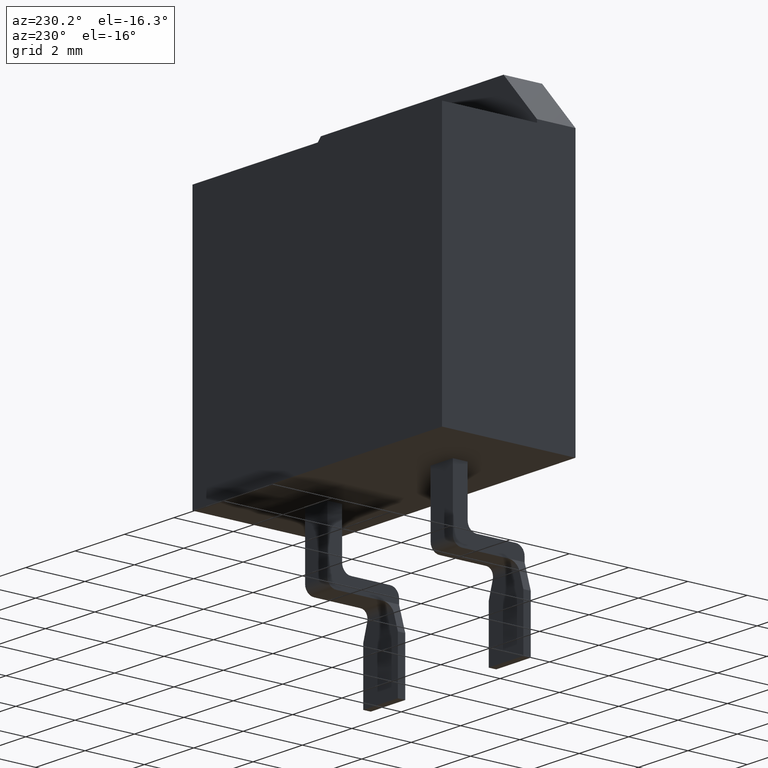
[diagram: clean part render]
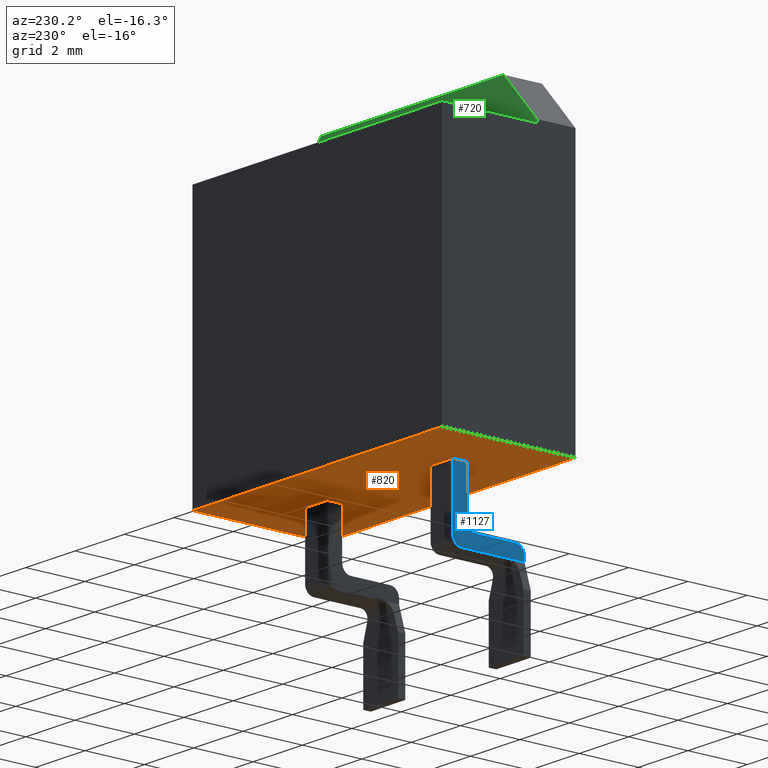
[diagram: same view with three faces highlighted in distinct colors, each labeled with its STEP entity id]
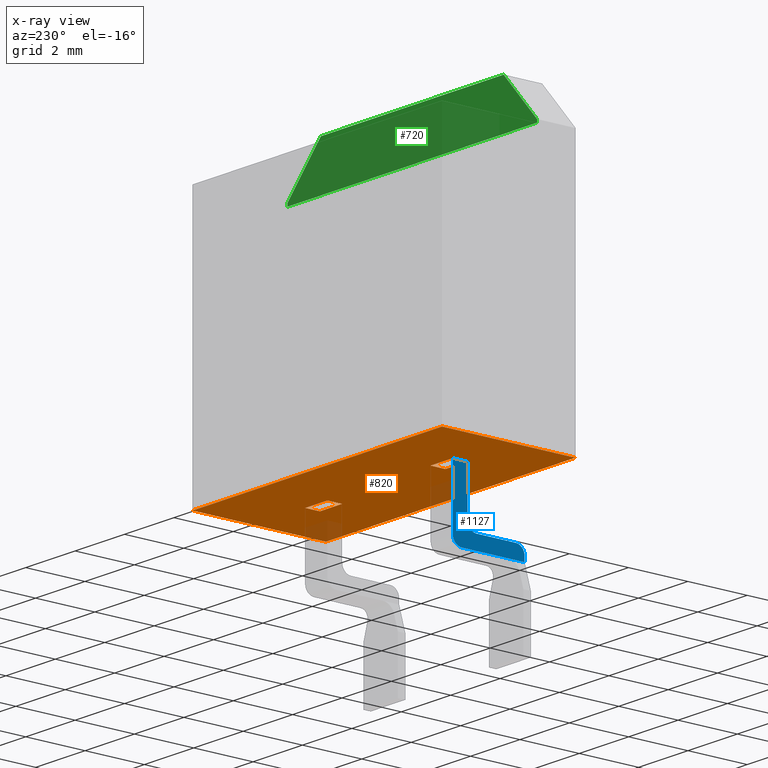
[diagram: x-ray of the same camera — body ghosted, the three highlighted faces saturated]
A machine part, auxiliary view with three faces highlighted in distinct colors.
The next image is the same camera in x-ray (body ghosted, the three faces saturated) — at least one of them is partly hidden behind the body in this view.
Their STEP definitions:

[orange] entity #820 — the highlighted planar face has unit normal (0, 0, -1).
#13=DIRECTION('',(-1.E0,0.E0,0.E0));
#14=VECTOR('',#13,1.01E1);
#15=CARTESIAN_POINT('',(5.05E0,0.E0,-4.4E0));
#16=LINE('',#15,#14);
#25=DIRECTION('',(0.E0,1.E0,0.E0));
#26=VECTOR('',#25,4.5E0);
#27=CARTESIAN_POINT('',(-5.05E0,0.E0,-4.4E0));
#28=LINE('',#27,#26);
#81=DIRECTION('',(-1.E0,0.E0,0.E0));
#82=VECTOR('',#81,1.01E1);
#83=CARTESIAN_POINT('',(5.05E0,4.5E0,-4.4E0));
#84=LINE('',#83,#82);
#93=DIRECTION('',(0.E0,1.E0,0.E0));
#94=VECTOR('',#93,4.5E0);
#95=CARTESIAN_POINT('',(5.05E0,0.E0,-4.4E0));
#96=LINE('',#95,#94);
#97=DIRECTION('',(1.E0,0.E0,0.E0));
#98=VECTOR('',#97,9.E-1);
#99=CARTESIAN_POINT('',(2.09E0,1.92E0,-4.4E0));
#100=LINE('',#99,#98);
#101=DIRECTION('',(1.E0,0.E0,0.E0));
#102=VECTOR('',#101,9.E-1);
#103=CARTESIAN_POINT('',(2.09E0,2.42E0,-4.4E0));
#104=LINE('',#103,#102);
#105=DIRECTION('',(0.E0,-1.E0,0.E0));
#106=VECTOR('',#105,5.E-1);
#107=CARTESIAN_POINT('',(2.99E0,2.42E0,-4.4E0));
#108=LINE('',#107,#106);
#109=DIRECTION('',(1.E0,0.E0,0.E0));
#110=VECTOR('',#109,9.E-1);
#111=CARTESIAN_POINT('',(-2.99E0,1.92E0,-4.4E0));
#112=LINE('',#111,#110);
#113=DIRECTION('',(1.E0,0.E0,0.E0));
#114=VECTOR('',#113,9.E-1);
#115=CARTESIAN_POINT('',(-2.99E0,2.42E0,-4.4E0));
#116=LINE('',#115,#114);
#117=DIRECTION('',(0.E0,-1.E0,0.E0));
#118=VECTOR('',#117,5.E-1);
#119=CARTESIAN_POINT('',(-2.09E0,2.42E0,-4.4E0));
#120=LINE('',#119,#118);
#149=DIRECTION('',(0.E0,-1.E0,0.E0));
#150=VECTOR('',#149,5.E-1);
#151=CARTESIAN_POINT('',(2.09E0,2.42E0,-4.4E0));
#152=LINE('',#151,#150);
#321=DIRECTION('',(0.E0,-1.E0,0.E0));
#322=VECTOR('',#321,5.E-1);
#323=CARTESIAN_POINT('',(-2.99E0,2.42E0,-4.4E0));
#324=LINE('',#323,#322);
#497=CARTESIAN_POINT('',(5.05E0,0.E0,-4.4E0));
#498=CARTESIAN_POINT('',(-5.05E0,0.E0,-4.4E0));
#499=VERTEX_POINT('',#497);
#500=VERTEX_POINT('',#498);
#501=CARTESIAN_POINT('',(-5.05E0,4.5E0,-4.4E0));
#503=VERTEX_POINT('',#501);
#507=CARTESIAN_POINT('',(5.05E0,4.5E0,-4.4E0));
#508=VERTEX_POINT('',#507);
#557=CARTESIAN_POINT('',(2.99E0,1.92E0,-4.4E0));
#559=VERTEX_POINT('',#557);
#561=CARTESIAN_POINT('',(2.09E0,1.92E0,-4.4E0));
#563=VERTEX_POINT('',#561);
#593=CARTESIAN_POINT('',(-2.99E0,1.92E0,-4.4E0));
#595=VERTEX_POINT('',#593);
#597=CARTESIAN_POINT('',(-2.09E0,1.92E0,-4.4E0));
#599=VERTEX_POINT('',#597);
#626=CARTESIAN_POINT('',(2.99E0,2.42E0,-4.4E0));
#628=VERTEX_POINT('',#626);
#630=CARTESIAN_POINT('',(2.09E0,2.42E0,-4.4E0));
#632=VERTEX_POINT('',#630);
#642=CARTESIAN_POINT('',(-2.99E0,2.42E0,-4.4E0));
#644=VERTEX_POINT('',#642);
#646=CARTESIAN_POINT('',(-2.09E0,2.42E0,-4.4E0));
#648=VERTEX_POINT('',#646);
#789=CARTESIAN_POINT('',(5.05E0,0.E0,-4.4E0));
#790=DIRECTION('',(0.E0,0.E0,-1.E0));
#791=DIRECTION('',(-1.E0,0.E0,0.E0));
#792=AXIS2_PLACEMENT_3D('',#789,#790,#791);
#793=PLANE('',#792);
#794=ORIENTED_EDGE('',*,*,#664,.F.);
#795=ORIENTED_EDGE('',*,*,#733,.T.);
#796=ORIENTED_EDGE('',*,*,#782,.T.);
#797=ORIENTED_EDGE('',*,*,#681,.F.);
#798=EDGE_LOOP('',(#794,#795,#796,#797));
#799=FACE_OUTER_BOUND('',#798,.F.);
#801=ORIENTED_EDGE('',*,*,#800,.F.);
#803=ORIENTED_EDGE('',*,*,#802,.F.);
#805=ORIENTED_EDGE('',*,*,#804,.T.);
#807=ORIENTED_EDGE('',*,*,#806,.T.);
#808=EDGE_LOOP('',(#801,#803,#805,#807));
#809=FACE_BOUND('',#808,.F.);
#811=ORIENTED_EDGE('',*,*,#810,.F.);
#813=ORIENTED_EDGE('',*,*,#812,.F.);
#815=ORIENTED_EDGE('',*,*,#814,.T.);
#817=ORIENTED_EDGE('',*,*,#816,.T.);
#818=EDGE_LOOP('',(#811,#813,#815,#817));
#819=FACE_BOUND('',#818,.F.);
#664=EDGE_CURVE('',#499,#500,#16,.T.);
#681=EDGE_CURVE('',#500,#503,#28,.T.);
#733=EDGE_CURVE('',#499,#508,#96,.T.);
#782=EDGE_CURVE('',#508,#503,#84,.T.);
#800=EDGE_CURVE('',#563,#559,#100,.T.);
#802=EDGE_CURVE('',#632,#563,#152,.T.);
#804=EDGE_CURVE('',#632,#628,#104,.T.);
#806=EDGE_CURVE('',#628,#559,#108,.T.);
#810=EDGE_CURVE('',#595,#599,#112,.T.);
#812=EDGE_CURVE('',#644,#595,#324,.T.);
#814=EDGE_CURVE('',#644,#648,#116,.T.);
#816=EDGE_CURVE('',#648,#599,#120,.T.);
#820=ADVANCED_FACE('',(#799,#809,#819),#793,.T.);

[blue] entity #1127 — the highlighted planar face has unit normal (1, 0, 0).
#309=DIRECTION('',(0.E0,0.E0,-1.E0));
#310=VECTOR('',#309,1.59E0);
#311=CARTESIAN_POINT('',(-2.99E0,1.92E0,-4.4E0));
#312=LINE('',#311,#310);
#321=DIRECTION('',(0.E0,-1.E0,0.E0));
#322=VECTOR('',#321,5.E-1);
#323=CARTESIAN_POINT('',(-2.99E0,2.42E0,-4.4E0));
#324=LINE('',#323,#322);
#325=CARTESIAN_POINT('',(-2.99E0,1.62E0,-5.99E0));
#326=DIRECTION('',(1.E0,0.E0,0.E0));
#327=DIRECTION('',(0.E0,0.E0,-1.E0));
#328=AXIS2_PLACEMENT_3D('',#325,#326,#327);
#339=DIRECTION('',(0.E0,0.E0,1.E0));
#340=VECTOR('',#339,2.057E0);
#341=CARTESIAN_POINT('',(-2.99E0,2.42E0,-6.457E0));
#342=LINE('',#341,#340);
#351=CARTESIAN_POINT('',(-2.99E0,2.12E0,-6.457E0));
#352=DIRECTION('',(-1.E0,0.E0,0.E0));
#353=DIRECTION('',(0.E0,1.E0,0.E0));
#354=AXIS2_PLACEMENT_3D('',#351,#352,#353);
#361=DIRECTION('',(0.E0,1.E0,0.E0));
#362=VECTOR('',#361,1.57E0);
#363=CARTESIAN_POINT('',(-2.99E0,5.5E-1,-6.757E0));
#364=LINE('',#363,#362);
#395=DIRECTION('',(0.E0,-1.E0,0.E0));
#396=VECTOR('',#395,5.5E-1);
#397=CARTESIAN_POINT('',(-2.99E0,5.5E-1,-6.757E0));
#398=LINE('',#397,#396);
#415=DIRECTION('',(0.E0,0.E0,-1.E0));
#416=VECTOR('',#415,1.67E-1);
#417=CARTESIAN_POINT('',(-2.99E0,0.E0,-6.59E0));
#418=LINE('',#417,#416);
#435=CARTESIAN_POINT('',(-2.99E0,3.E-1,-6.59E0));
#436=DIRECTION('',(-1.E0,0.E0,0.E0));
#437=DIRECTION('',(0.E0,-1.E0,0.E0));
#438=AXIS2_PLACEMENT_3D('',#435,#436,#437);
#445=DIRECTION('',(0.E0,-1.E0,0.E0));
#446=VECTOR('',#445,1.32E0);
#447=CARTESIAN_POINT('',(-2.99E0,1.62E0,-6.29E0));
#448=LINE('',#447,#446);
#593=CARTESIAN_POINT('',(-2.99E0,1.92E0,-4.4E0));
#594=CARTESIAN_POINT('',(-2.99E0,1.92E0,-5.99E0));
#595=VERTEX_POINT('',#593);
#596=VERTEX_POINT('',#594);
#601=CARTESIAN_POINT('',(-2.99E0,1.62E0,-6.29E0));
#602=CARTESIAN_POINT('',(-2.99E0,3.E-1,-6.29E0));
#603=VERTEX_POINT('',#601);
#604=VERTEX_POINT('',#602);
#609=CARTESIAN_POINT('',(-2.99E0,0.E0,-6.59E0));
#610=CARTESIAN_POINT('',(-2.99E0,0.E0,-6.757E0));
#611=VERTEX_POINT('',#609);
#612=VERTEX_POINT('',#610);
#633=CARTESIAN_POINT('',(-2.99E0,5.5E-1,-6.757E0));
#634=CARTESIAN_POINT('',(-2.99E0,2.12E0,-6.757E0));
#635=VERTEX_POINT('',#633);
#636=VERTEX_POINT('',#634);
#641=CARTESIAN_POINT('',(-2.99E0,2.42E0,-6.457E0));
#642=CARTESIAN_POINT('',(-2.99E0,2.42E0,-4.4E0));
#643=VERTEX_POINT('',#641);
#644=VERTEX_POINT('',#642);
#1102=CARTESIAN_POINT('',(-2.99E0,2.42E0,-4.4E0));
#1103=DIRECTION('',(1.E0,0.E0,0.E0));
#1104=DIRECTION('',(0.E0,0.E0,-1.E0));
#1105=AXIS2_PLACEMENT_3D('',#1102,#1103,#1104);
#1106=PLANE('',#1105);
#1107=ORIENTED_EDGE('',*,*,#1092,.T.);
#1109=ORIENTED_EDGE('',*,*,#1108,.F.);
#1111=ORIENTED_EDGE('',*,*,#1110,.T.);
#1113=ORIENTED_EDGE('',*,*,#1112,.F.);
#1115=ORIENTED_EDGE('',*,*,#1114,.T.);
#1117=ORIENTED_EDGE('',*,*,#1116,.F.);
#1119=ORIENTED_EDGE('',*,*,#1118,.T.);
#1121=ORIENTED_EDGE('',*,*,#1120,.F.);
#1123=ORIENTED_EDGE('',*,*,#1122,.T.);
#1124=ORIENTED_EDGE('',*,*,#812,.T.);
#1125=EDGE_LOOP('',(#1107,#1109,#1111,#1113,#1115,#1117,#1119,#1121,#1123,
#1124));
#1126=FACE_OUTER_BOUND('',#1125,.F.);
#329=CIRCLE('',#328,3.E-1);
#355=CIRCLE('',#354,3.E-1);
#439=CIRCLE('',#438,3.E-1);
#812=EDGE_CURVE('',#644,#595,#324,.T.);
#1092=EDGE_CURVE('',#595,#596,#312,.T.);
#1108=EDGE_CURVE('',#603,#596,#329,.T.);
#1110=EDGE_CURVE('',#603,#604,#448,.T.);
#1112=EDGE_CURVE('',#611,#604,#439,.T.);
#1114=EDGE_CURVE('',#611,#612,#418,.T.);
#1116=EDGE_CURVE('',#635,#612,#398,.T.);
#1118=EDGE_CURVE('',#635,#636,#364,.T.);
#1120=EDGE_CURVE('',#643,#636,#355,.T.);
#1122=EDGE_CURVE('',#643,#644,#342,.T.);
#1127=ADVANCED_FACE('',(#1126),#1106,.F.);

[green] entity #720 — the highlighted planar face has unit normal (0, -1, 0).
#29=DIRECTION('',(1.E0,0.E0,0.E0));
#30=VECTOR('',#29,1.01E1);
#31=CARTESIAN_POINT('',(-5.05E0,1.3E0,4.4E0));
#32=LINE('',#31,#30);
#37=DIRECTION('',(0.E0,0.E0,1.E0));
#38=VECTOR('',#37,1.006731049806E-1);
#39=CARTESIAN_POINT('',(5.05E0,1.3E0,4.4E0));
#40=LINE('',#39,#38);
#41=DIRECTION('',(-6.691306063589E-1,0.E0,7.431448254774E-1));
#42=VECTOR('',#41,2.017543342317E0);
#43=CARTESIAN_POINT('',(5.05E0,1.3E0,4.500673104981E0));
#44=LINE('',#43,#42);
#45=DIRECTION('',(-1.E0,0.E0,0.E0));
#46=VECTOR('',#45,7.4E0);
#47=CARTESIAN_POINT('',(3.7E0,1.3E0,6.E0));
#48=LINE('',#47,#46);
#49=DIRECTION('',(-6.691306063589E-1,0.E0,-7.431448254774E-1));
#50=VECTOR('',#49,2.017543342317E0);
#51=CARTESIAN_POINT('',(-3.7E0,1.3E0,6.E0));
#52=LINE('',#51,#50);
#53=DIRECTION('',(0.E0,0.E0,-1.E0));
#54=VECTOR('',#53,1.006731049806E-1);
#55=CARTESIAN_POINT('',(-5.05E0,1.3E0,4.500673104981E0));
#56=LINE('',#55,#54);
#529=CARTESIAN_POINT('',(3.7E0,1.3E0,6.E0));
#530=CARTESIAN_POINT('',(-3.7E0,1.3E0,6.E0));
#531=VERTEX_POINT('',#529);
#532=VERTEX_POINT('',#530);
#533=CARTESIAN_POINT('',(-5.05E0,1.3E0,4.4E0));
#534=CARTESIAN_POINT('',(5.05E0,1.3E0,4.4E0));
#535=VERTEX_POINT('',#533);
#536=VERTEX_POINT('',#534);
#541=CARTESIAN_POINT('',(5.05E0,1.3E0,4.500673104981E0));
#542=VERTEX_POINT('',#541);
#543=CARTESIAN_POINT('',(-5.05E0,1.3E0,4.500673104981E0));
#544=VERTEX_POINT('',#543);
#703=CARTESIAN_POINT('',(0.E0,1.3E0,0.E0));
#704=DIRECTION('',(0.E0,-1.E0,0.E0));
#705=DIRECTION('',(0.E0,0.E0,-1.E0));
#706=AXIS2_PLACEMENT_3D('',#703,#704,#705);
#707=PLANE('',#706);
#708=ORIENTED_EDGE('',*,*,#693,.T.);
#710=ORIENTED_EDGE('',*,*,#709,.T.);
#712=ORIENTED_EDGE('',*,*,#711,.T.);
#714=ORIENTED_EDGE('',*,*,#713,.T.);
#716=ORIENTED_EDGE('',*,*,#715,.T.);
#717=ORIENTED_EDGE('',*,*,#676,.T.);
#718=EDGE_LOOP('',(#708,#710,#712,#714,#716,#717));
#719=FACE_OUTER_BOUND('',#718,.F.);
#676=EDGE_CURVE('',#544,#535,#56,.T.);
#693=EDGE_CURVE('',#535,#536,#32,.T.);
#709=EDGE_CURVE('',#536,#542,#40,.T.);
#711=EDGE_CURVE('',#542,#531,#44,.T.);
#713=EDGE_CURVE('',#531,#532,#48,.T.);
#715=EDGE_CURVE('',#532,#544,#52,.T.);
#720=ADVANCED_FACE('',(#719),#707,.F.);